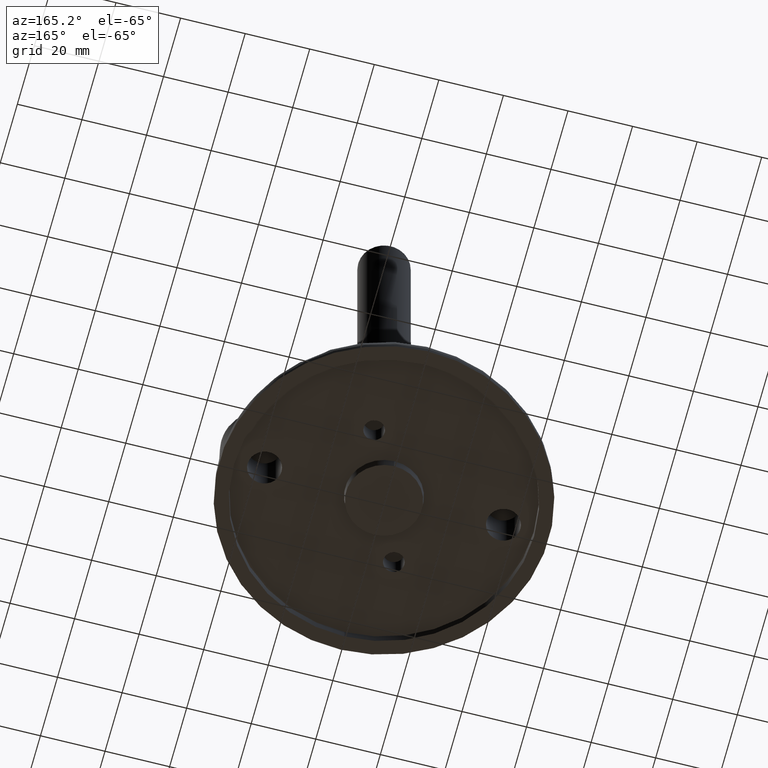
[diagram: clean part render]
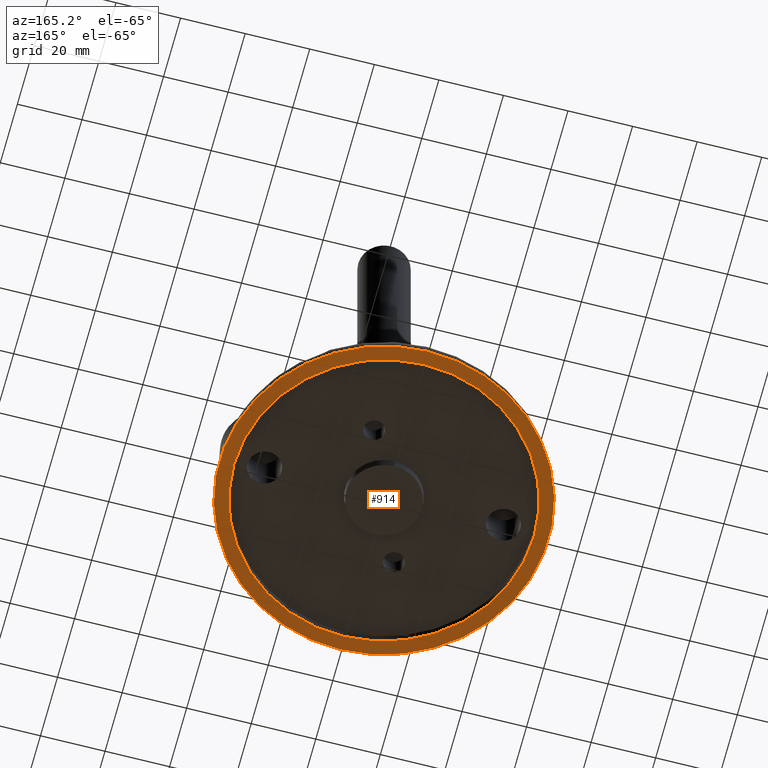
[diagram: same view with one face highlighted and labeled with its STEP entity id]
A machine part, auxiliary view. The second image highlights one B-rep face of the part: STEP entity #914.
In plain terms, the highlighted planar face has unit normal (0, 0, 1).
Its self-contained STEP definition (entity closure, byte-faithful):
#146=FACE_BOUND('',#216,.T.);
#149=FACE_OUTER_BOUND('',#215,.T.);
#215=EDGE_LOOP('',(#575));
#216=EDGE_LOOP('',(#576));
#283=CIRCLE('',#1006,51.0059948985812);
#284=CIRCLE('',#1007,46.5032577445684);
#359=VERTEX_POINT('',#1398);
#360=VERTEX_POINT('',#1400);
#442=EDGE_CURVE('',#359,#359,#283,.T.);
#443=EDGE_CURVE('',#360,#360,#284,.F.);
#575=ORIENTED_EDGE('',*,*,#442,.F.);
#576=ORIENTED_EDGE('',*,*,#443,.F.);
#836=PLANE('',#1005);
#914=ADVANCED_FACE('',(#149,#146),#836,.F.);
#1005=AXIS2_PLACEMENT_3D('',#1397,#1134,#1135);
#1006=AXIS2_PLACEMENT_3D('',#1399,#1136,#1137);
#1007=AXIS2_PLACEMENT_3D('',#1401,#1138,#1139);
#1134=DIRECTION('center_axis',(0.,0.,1.));
#1135=DIRECTION('ref_axis',(1.,0.,0.));
#1136=DIRECTION('center_axis',(0.,0.,1.));
#1137=DIRECTION('ref_axis',(0.,1.,-1.171453E-15));
#1138=DIRECTION('center_axis',(0.,0.,1.));
#1139=DIRECTION('ref_axis',(1.,0.,0.));
#1397=CARTESIAN_POINT('Origin',(-36.9,1.729065E-13,4.352074E-14));
#1398=CARTESIAN_POINT('',(0.,-51.0059948985812,4.35762537165374E-14));
#1399=CARTESIAN_POINT('Origin',(0.,7.04756674839387E-23,4.35762537165374E-14));
#1400=CARTESIAN_POINT('',(-5.69500657468101E-15,-46.5032577445684,4.32986979603811E-14));
#1401=CARTESIAN_POINT('Origin',(5.416568E-15,3.51436E-15,4.336809E-14));